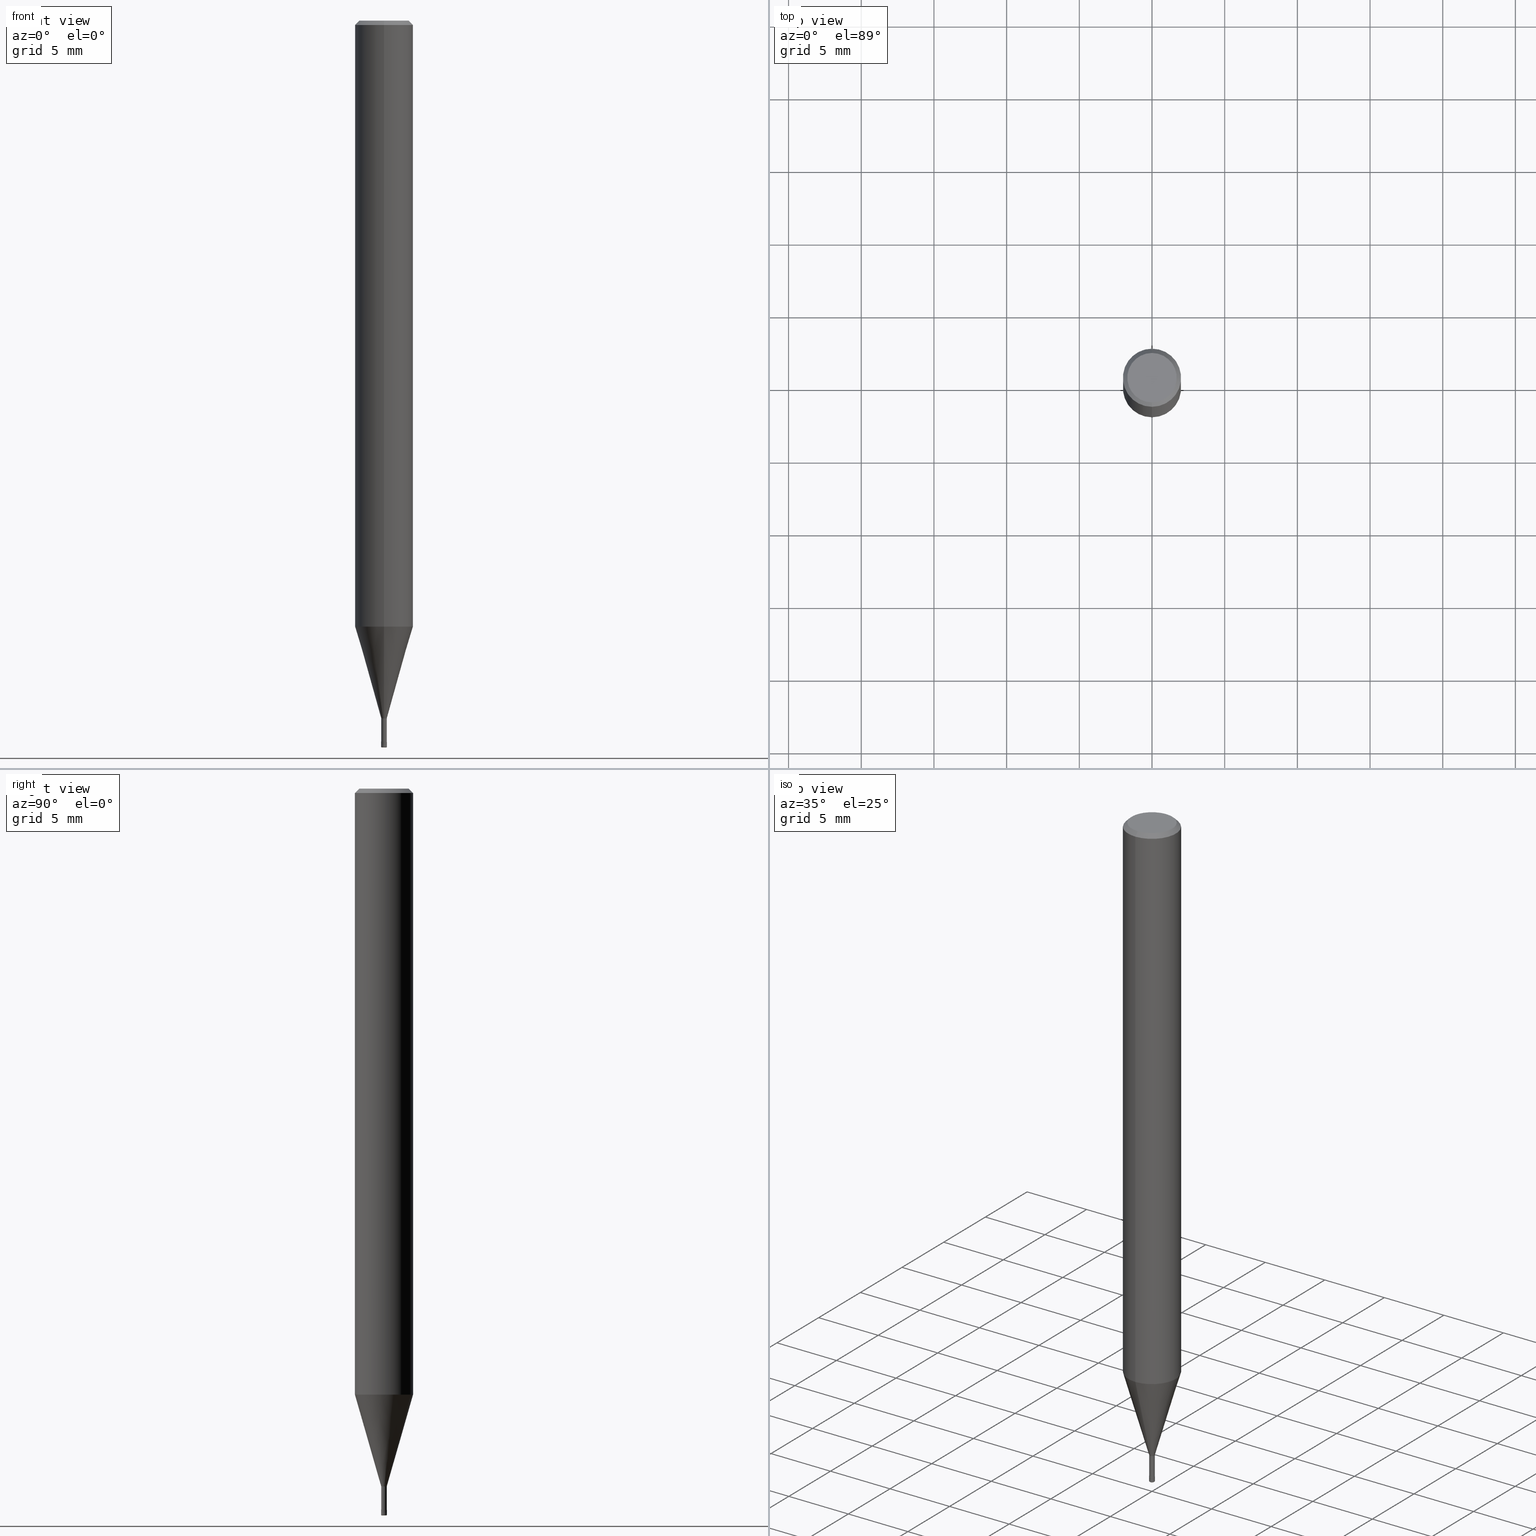
[diagram: canonical four-view strip — front | top / right | iso, engineering-drawing reading convention]
A machine part, canonical four-view strip (front | top / right | iso — engineering-drawing reading convention). The complete STEP part file that produces these views, byte-faithful:
ISO-10303-21;
HEADER;
FILE_DESCRIPTION(('no description'),'unknown implementation level');
FILE_NAME('HLRS2004-005-020E-Huellk.stp','  ',('CIMSOURCE GmbH'),('CADClick - KiM GmbH - www.kimweb.de'),'unknown preprocess','ACIS','unknown authorization');
FILE_SCHEMA(('automotive_design'));
ENDSEC;
DATA;
#1=MECHANICAL_DESIGN_GEOMETRIC_PRESENTATION_REPRESENTATION(' ',(#14,#15,#16,#17,#18,#19,#20,#21,#22,#23,#24,#25,#26,#27,#28,#29,#30,#31,#32,#33,#34,#35,#36,#37,#38,#39,#40,#41,#42,#43,#44,#45,#46,#47,#48,#49,#50,#51,#52,#53,#54,#55,#56,#57,#58,#59,#60,#61,#62,#63,#64,#65,#66,#67,#68,#69,#70,#71,#72,#73,#74,#75,#76,#77,#78,#79,#80),#10);
#2=PRODUCT_DEFINITION_CONTEXT('',#81,'design');
#3=APPLICATION_PROTOCOL_DEFINITION('INTERNATIONAL STANDARD','automotive_design',1994,#81);
#4=PRODUCT_CATEGORY_RELATIONSHIP('NONE','NONE',#82,#83);
#5=SHAPE_DEFINITION_REPRESENTATION(#84,#85);
#6=PRODUCT_DEFINITION_CONTEXT('',#86,'design');
#7=APPLICATION_PROTOCOL_DEFINITION('INTERNATIONAL STANDARD','automotive_design',1994,#86);
#8=PRODUCT_CATEGORY_RELATIONSHIP('NONE','NONE',#87,#88);
#9=SHAPE_DEFINITION_REPRESENTATION(#89,#90);
#10= (GEOMETRIC_REPRESENTATION_CONTEXT(3)GLOBAL_UNCERTAINTY_ASSIGNED_CONTEXT((#93))GLOBAL_UNIT_ASSIGNED_CONTEXT((#95,#96,#97))REPRESENTATION_CONTEXT('NONE','WORKSPACE'));
#14=STYLED_ITEM('',(#99),#100);
#15=STYLED_ITEM('',(#101),#102);
#16=STYLED_ITEM('',(#103),#104);
#17=STYLED_ITEM('',(#105),#106);
#18=STYLED_ITEM('',(#107),#108);
#19=STYLED_ITEM('',(#109),#110);
#20=STYLED_ITEM('',(#111),#112);
#21=STYLED_ITEM('',(#113),#114);
#22=STYLED_ITEM('',(#115),#116);
#23=STYLED_ITEM('',(#117),#118);
#24=STYLED_ITEM('',(#119),#120);
#25=STYLED_ITEM('',(#121),#122);
#26=STYLED_ITEM('',(#123),#124);
#27=STYLED_ITEM('',(#125),#126);
#28=STYLED_ITEM('',(#127),#128);
#29=STYLED_ITEM('',(#129),#130);
#30=STYLED_ITEM('',(#131),#132);
#31=STYLED_ITEM('',(#133),#134);
#32=STYLED_ITEM('',(#135),#136);
#33=STYLED_ITEM('',(#137),#138);
#34=STYLED_ITEM('',(#139),#140);
#35=STYLED_ITEM('',(#141),#142);
#36=STYLED_ITEM('',(#143),#144);
#37=STYLED_ITEM('',(#145),#146);
#38=STYLED_ITEM('',(#147),#148);
#39=STYLED_ITEM('',(#149),#150);
#40=STYLED_ITEM('',(#151),#152);
#41=STYLED_ITEM('',(#153),#154);
#42=STYLED_ITEM('',(#155),#156);
#43=STYLED_ITEM('',(#157),#158);
#44=STYLED_ITEM('',(#159),#160);
#45=STYLED_ITEM('',(#161),#162);
#46=STYLED_ITEM('',(#163),#164);
#47=STYLED_ITEM('',(#165),#166);
#48=STYLED_ITEM('',(#167),#168);
#49=STYLED_ITEM('',(#169),#170);
#50=STYLED_ITEM('',(#171),#172);
#51=STYLED_ITEM('',(#173),#174);
#52=STYLED_ITEM('',(#175),#176);
#53=STYLED_ITEM('',(#177),#178);
#54=STYLED_ITEM('',(#179),#180);
#55=STYLED_ITEM('',(#181),#182);
#56=STYLED_ITEM('',(#183),#184);
#57=STYLED_ITEM('',(#185),#186);
#58=STYLED_ITEM('',(#187),#188);
#59=STYLED_ITEM('',(#189),#190);
#60=STYLED_ITEM('',(#191),#192);
#61=STYLED_ITEM('',(#193),#194);
#62=STYLED_ITEM('',(#195),#196);
#63=STYLED_ITEM('',(#197),#198);
#64=STYLED_ITEM('',(#199),#200);
#65=STYLED_ITEM('',(#201),#202);
#66=STYLED_ITEM('',(#203),#204);
#67=STYLED_ITEM('',(#205),#206);
#68=STYLED_ITEM('',(#207),#208);
#69=STYLED_ITEM('',(#209),#210);
#70=STYLED_ITEM('',(#211),#212);
#71=STYLED_ITEM('',(#213),#214);
#72=STYLED_ITEM('',(#215),#216);
#73=STYLED_ITEM('',(#217),#218);
#74=STYLED_ITEM('',(#219),#220);
#75=STYLED_ITEM('',(#221),#222);
#76=STYLED_ITEM('',(#223),#224);
#77=STYLED_ITEM('',(#225),#226);
#78=STYLED_ITEM('',(#227),#228);
#79=STYLED_ITEM('',(#229),#230);
#80=STYLED_ITEM('',(#231),#232);
#81=APPLICATION_CONTEXT(' ');
#82=PRODUCT_CATEGORY('part','NONE');
#83=PRODUCT_RELATED_PRODUCT_CATEGORY('detail',' ',(#233));
#84=PRODUCT_DEFINITION_SHAPE('NONE','NONE',#234);
#85=ADVANCED_BREP_SHAPE_REPRESENTATION('1',(#226,#235),#10);
#86=APPLICATION_CONTEXT(' ');
#87=PRODUCT_CATEGORY('part','NONE');
#88=PRODUCT_RELATED_PRODUCT_CATEGORY('detail',' ',(#236));
#89=PRODUCT_DEFINITION_SHAPE('NONE','NONE',#237);
#90=ADVANCED_BREP_SHAPE_REPRESENTATION('2',(#146,#238),#10);
#93=UNCERTAINTY_MEASURE_WITH_UNIT(LENGTH_MEASURE(1.0E-006),#95,'','');
#95= (CONVERSION_BASED_UNIT('MILLIMETRE',#241)LENGTH_UNIT()NAMED_UNIT(#244));
#96= (NAMED_UNIT(#246)PLANE_ANGLE_UNIT()SI_UNIT($,.RADIAN.));
#97= (NAMED_UNIT(#246)SOLID_ANGLE_UNIT()SI_UNIT($,.STERADIAN.));
#99=PRESENTATION_STYLE_ASSIGNMENT((#252));
#100=EDGE_CURVE('',#186,#228,#253,.T.);
#101=PRESENTATION_STYLE_ASSIGNMENT((#254));
#102=EDGE_CURVE('',#164,#152,#255,.T.);
#103=PRESENTATION_STYLE_ASSIGNMENT((#256));
#104=EDGE_CURVE('',#178,#158,#257,.T.);
#105=PRESENTATION_STYLE_ASSIGNMENT((#258));
#106=ADVANCED_FACE('',(#259,#260),#261,.T.);
#107=PRESENTATION_STYLE_ASSIGNMENT((#262));
#108=EDGE_CURVE('',#164,#156,#263,.T.);
#109=PRESENTATION_STYLE_ASSIGNMENT((#264));
#110=EDGE_CURVE('',#192,#222,#265,.T.);
#111=PRESENTATION_STYLE_ASSIGNMENT((#266));
#112=VERTEX_POINT('',#267);
#113=PRESENTATION_STYLE_ASSIGNMENT((#268));
#114=EDGE_CURVE('',#192,#148,#269,.T.);
#115=PRESENTATION_STYLE_ASSIGNMENT((#270));
#116=ADVANCED_FACE('',(#271),#272,.T.);
#117=PRESENTATION_STYLE_ASSIGNMENT((#273));
#118=EDGE_CURVE('',#230,#112,#274,.T.);
#119=PRESENTATION_STYLE_ASSIGNMENT((#275));
#120=ADVANCED_FACE('',(#276),#277,.T.);
#121=PRESENTATION_STYLE_ASSIGNMENT((#278));
#122=EDGE_CURVE('',#150,#156,#279,.T.);
#123=PRESENTATION_STYLE_ASSIGNMENT((#280));
#124=EDGE_CURVE('',#126,#152,#281,.T.);
#125=PRESENTATION_STYLE_ASSIGNMENT((#282));
#126=VERTEX_POINT('',#283);
#127=PRESENTATION_STYLE_ASSIGNMENT((#284));
#128=EDGE_CURVE('',#222,#192,#285,.T.);
#129=PRESENTATION_STYLE_ASSIGNMENT((#286));
#130=EDGE_CURVE('',#148,#158,#287,.T.);
#131=PRESENTATION_STYLE_ASSIGNMENT((#288));
#132=EDGE_CURVE('',#186,#112,#289,.T.);
#133=PRESENTATION_STYLE_ASSIGNMENT((#290));
#134=VERTEX_POINT('',#291);
#135=PRESENTATION_STYLE_ASSIGNMENT((#292));
#136=EDGE_CURVE('',#158,#148,#293,.T.);
#137=PRESENTATION_STYLE_ASSIGNMENT((#294));
#138=ADVANCED_FACE('',(#295),#296,.T.);
#139=PRESENTATION_STYLE_ASSIGNMENT((#297));
#140=EDGE_CURVE('',#112,#230,#298,.T.);
#141=PRESENTATION_STYLE_ASSIGNMENT((#299));
#142=ADVANCED_FACE('',(#300),#301,.T.);
#143=PRESENTATION_STYLE_ASSIGNMENT((#302));
#144=EDGE_CURVE('',#202,#184,#303,.T.);
#145=PRESENTATION_STYLE_ASSIGNMENT((#304));
#146=MANIFOLD_SOLID_BREP('2',#305);
#147=PRESENTATION_STYLE_ASSIGNMENT((#306));
#148=VERTEX_POINT('',#307);
#149=PRESENTATION_STYLE_ASSIGNMENT((#308));
#150=VERTEX_POINT('',#309);
#151=PRESENTATION_STYLE_ASSIGNMENT((#310));
#152=VERTEX_POINT('',#311);
#153=PRESENTATION_STYLE_ASSIGNMENT((#312));
#154=EDGE_CURVE('',#150,#152,#313,.T.);
#155=PRESENTATION_STYLE_ASSIGNMENT((#314));
#156=VERTEX_POINT('',#315);
#157=PRESENTATION_STYLE_ASSIGNMENT((#316));
#158=VERTEX_POINT('',#317);
#159=PRESENTATION_STYLE_ASSIGNMENT((#318));
#160=EDGE_CURVE('',#150,#196,#319,.T.);
#161=PRESENTATION_STYLE_ASSIGNMENT((#320));
#162=EDGE_CURVE('',#196,#126,#321,.T.);
#163=PRESENTATION_STYLE_ASSIGNMENT((#322));
#164=VERTEX_POINT('',#323);
#165=PRESENTATION_STYLE_ASSIGNMENT((#324));
#166=EDGE_CURVE('',#178,#134,#325,.T.);
#167=PRESENTATION_STYLE_ASSIGNMENT((#326));
#168=EDGE_CURVE('',#184,#202,#327,.T.);
#169=PRESENTATION_STYLE_ASSIGNMENT((#328));
#170=ADVANCED_FACE('',(#329),#330,.T.);
#171=PRESENTATION_STYLE_ASSIGNMENT((#331));
#172=EDGE_CURVE('',#134,#178,#332,.T.);
#173=PRESENTATION_STYLE_ASSIGNMENT((#333));
#174=ADVANCED_FACE('',(#334),#335,.T.);
#175=PRESENTATION_STYLE_ASSIGNMENT((#336));
#176=ADVANCED_FACE('',(#337),#338,.T.);
#177=PRESENTATION_STYLE_ASSIGNMENT((#339));
#178=VERTEX_POINT('',#340);
#179=PRESENTATION_STYLE_ASSIGNMENT((#341));
#180=EDGE_CURVE('',#202,#186,#342,.T.);
#181=PRESENTATION_STYLE_ASSIGNMENT((#343));
#182=EDGE_CURVE('',#148,#134,#344,.T.);
#183=PRESENTATION_STYLE_ASSIGNMENT((#345));
#184=VERTEX_POINT('',#346);
#185=PRESENTATION_STYLE_ASSIGNMENT((#347));
#186=VERTEX_POINT('',#348);
#187=PRESENTATION_STYLE_ASSIGNMENT((#349));
#188=ADVANCED_FACE('',(#350),#351,.T.);
#189=PRESENTATION_STYLE_ASSIGNMENT((#352));
#190=EDGE_CURVE('',#228,#186,#353,.T.);
#191=PRESENTATION_STYLE_ASSIGNMENT((#354));
#192=VERTEX_POINT('',#355);
#193=PRESENTATION_STYLE_ASSIGNMENT((#356));
#194=ADVANCED_FACE('',(#357),#358,.T.);
#195=PRESENTATION_STYLE_ASSIGNMENT((#359));
#196=VERTEX_POINT('',#360);
#197=PRESENTATION_STYLE_ASSIGNMENT((#361));
#198=ADVANCED_FACE('',(#362),#363,.T.);
#199=PRESENTATION_STYLE_ASSIGNMENT((#364));
#200=EDGE_CURVE('',#156,#164,#365,.T.);
#201=PRESENTATION_STYLE_ASSIGNMENT((#366));
#202=VERTEX_POINT('',#367);
#203=PRESENTATION_STYLE_ASSIGNMENT((#368));
#204=EDGE_CURVE('',#230,#228,#369,.T.);
#205=PRESENTATION_STYLE_ASSIGNMENT((#370));
#206=EDGE_CURVE('',#152,#150,#371,.T.);
#207=PRESENTATION_STYLE_ASSIGNMENT((#372));
#208=ADVANCED_FACE('',(#373),#374,.T.);
#209=PRESENTATION_STYLE_ASSIGNMENT((#375));
#210=ADVANCED_FACE('',(#376),#377,.T.);
#211=PRESENTATION_STYLE_ASSIGNMENT((#378));
#212=ADVANCED_FACE('',(#379),#380,.T.);
#213=PRESENTATION_STYLE_ASSIGNMENT((#381));
#214=ADVANCED_FACE('',(#382),#383,.T.);
#215=PRESENTATION_STYLE_ASSIGNMENT((#384));
#216=ADVANCED_FACE('',(#385),#386,.T.);
#217=PRESENTATION_STYLE_ASSIGNMENT((#387));
#218=EDGE_CURVE('',#228,#184,#388,.T.);
#219=PRESENTATION_STYLE_ASSIGNMENT((#389));
#220=EDGE_CURVE('',#126,#196,#390,.T.);
#221=PRESENTATION_STYLE_ASSIGNMENT((#391));
#222=VERTEX_POINT('',#392);
#223=PRESENTATION_STYLE_ASSIGNMENT((#393));
#224=EDGE_CURVE('',#158,#222,#394,.T.);
#225=PRESENTATION_STYLE_ASSIGNMENT((#395));
#226=MANIFOLD_SOLID_BREP('1',#396);
#227=PRESENTATION_STYLE_ASSIGNMENT((#397));
#228=VERTEX_POINT('',#398);
#229=PRESENTATION_STYLE_ASSIGNMENT((#399));
#230=VERTEX_POINT('',#400);
#231=PRESENTATION_STYLE_ASSIGNMENT((#401));
#232=ADVANCED_FACE('',(#402),#403,.T.);
#233=PRODUCT('1','1','PART-1-DESC',(#404));
#234=PRODUCT_DEFINITION('NONE','NONE',#405,#2);
#235=AXIS2_PLACEMENT_3D('',#406,#407,#408);
#236=PRODUCT('2','2','PART-2-DESC',(#409));
#237=PRODUCT_DEFINITION('NONE','NONE',#410,#6);
#238=AXIS2_PLACEMENT_3D('',#411,#412,#413);
#241=LENGTH_MEASURE_WITH_UNIT(LENGTH_MEASURE(1.0),#414);
#244=DIMENSIONAL_EXPONENTS(1.0,0.0,0.0,0.0,0.0,0.0,0.0);
#246=DIMENSIONAL_EXPONENTS(0.0,0.0,0.0,0.0,0.0,0.0,0.0);
#252=CURVE_STYLE('',#415,POSITIVE_LENGTH_MEASURE(1.0E-006),#416);
#253=CIRCLE('',#417,2.0);
#254=CURVE_STYLE('',#418,POSITIVE_LENGTH_MEASURE(1.0E-006),#419);
#255=CIRCLE('',#420,0.0499999999999998);
#256=CURVE_STYLE('',#421,POSITIVE_LENGTH_MEASURE(1.0E-006),#422);
#257=LINE('',#423,#424);
#258=SURFACE_STYLE_USAGE(.BOTH.,#425);
#259=FACE_OUTER_BOUND('',#426,.T.);
#260=FACE_BOUND('',#427,.T.);
#261=PLANE('',#428);
#262=CURVE_STYLE('',#429,POSITIVE_LENGTH_MEASURE(1.0E-006),#430);
#263=CIRCLE('',#431,0.15);
#264=CURVE_STYLE('',#432,POSITIVE_LENGTH_MEASURE(1.0E-006),#433);
#265=CIRCLE('',#434,1.99995);
#266=POINT_STYLE(' ',#435,POSITIVE_LENGTH_MEASURE(1.0E-006),#436);
#267=CARTESIAN_POINT('',(2.08183080149804E-016,-1.7,0.0));
#268=CURVE_STYLE('',#437,POSITIVE_LENGTH_MEASURE(1.0E-006),#438);
#269=LINE('',#439,#440);
#270=SURFACE_STYLE_USAGE(.BOTH.,#441);
#271=FACE_OUTER_BOUND('',#442,.T.);
#272=PLANE('',#443);
#273=CURVE_STYLE('',#444,POSITIVE_LENGTH_MEASURE(1.0E-006),#445);
#274=CIRCLE('',#446,1.7);
#275=SURFACE_STYLE_USAGE(.BOTH.,#447);
#276=FACE_OUTER_BOUND('',#448,.T.);
#277=CONICAL_SURFACE('',#449,0.19995,0.000285714277939796);
#278=CURVE_STYLE('',#450,POSITIVE_LENGTH_MEASURE(1.0E-006),#451);
#279=CIRCLE('',#452,0.0499999999999998);
#280=CURVE_STYLE('',#453,POSITIVE_LENGTH_MEASURE(1.0E-006),#454);
#281=LINE('',#455,#456);
#282=POINT_STYLE(' ',#457,POSITIVE_LENGTH_MEASURE(1.0E-006),#458);
#283=CARTESIAN_POINT('',(0.0,0.1999,-49.6));
#284=CURVE_STYLE('',#459,POSITIVE_LENGTH_MEASURE(1.0E-006),#460);
#285=CIRCLE('',#461,1.99995);
#286=CURVE_STYLE('',#462,POSITIVE_LENGTH_MEASURE(1.0E-006),#463);
#287=CIRCLE('',#464,0.18995);
#288=CURVE_STYLE('',#465,POSITIVE_LENGTH_MEASURE(1.0E-006),#466);
#289=LINE('',#467,#468);
#290=POINT_STYLE(' ',#469,POSITIVE_LENGTH_MEASURE(1.0E-006),#470);
#291=CARTESIAN_POINT('',(0.0,0.18995,-49.6));
#292=CURVE_STYLE('',#471,POSITIVE_LENGTH_MEASURE(1.0E-006),#472);
#293=CIRCLE('',#473,0.18995);
#294=SURFACE_STYLE_USAGE(.BOTH.,#474);
#295=FACE_OUTER_BOUND('',#475,.T.);
#296=CONICAL_SURFACE('',#476,1.85,0.785398163397453);
#297=CURVE_STYLE('',#477,POSITIVE_LENGTH_MEASURE(1.0E-006),#478);
#298=CIRCLE('',#479,1.7);
#299=SURFACE_STYLE_USAGE(.BOTH.,#480);
#300=FACE_OUTER_BOUND('',#481,.T.);
#301=CYLINDRICAL_SURFACE('',#482,2.0);
#302=CURVE_STYLE('',#483,POSITIVE_LENGTH_MEASURE(1.0E-006),#484);
#303=CIRCLE('',#485,2.0);
#304=SURFACE_STYLE_USAGE(.BOTH.,#486);
#305=CLOSED_SHELL('',(#198,#120,#216,#174,#194,#212));
#306=POINT_STYLE(' ',#487,POSITIVE_LENGTH_MEASURE(1.0E-006),#488);
#307=CARTESIAN_POINT('',(0.0,0.18995,-48.0));
#308=POINT_STYLE(' ',#489,POSITIVE_LENGTH_MEASURE(1.0E-006),#490);
#309=CARTESIAN_POINT('',(2.44921270764475E-017,-0.2,-49.95));
#310=POINT_STYLE(' ',#491,POSITIVE_LENGTH_MEASURE(1.0E-006),#492);
#311=CARTESIAN_POINT('',(0.0,0.2,-49.95));
#312=CURVE_STYLE('',#493,POSITIVE_LENGTH_MEASURE(1.0E-006),#494);
#313=CIRCLE('',#495,0.2);
#314=POINT_STYLE(' ',#496,POSITIVE_LENGTH_MEASURE(1.0E-006),#497);
#315=CARTESIAN_POINT('',(1.83690953073357E-017,-0.15,-50.0));
#316=POINT_STYLE(' ',#498,POSITIVE_LENGTH_MEASURE(1.0E-006),#499);
#317=CARTESIAN_POINT('',(2.3261397690856E-017,-0.18995,-48.0));
#318=CURVE_STYLE('',#500,POSITIVE_LENGTH_MEASURE(1.0E-006),#501);
#319=LINE('',#502,#503);
#320=CURVE_STYLE('',#504,POSITIVE_LENGTH_MEASURE(1.0E-006),#505);
#321=CIRCLE('',#506,0.1999);
#322=POINT_STYLE(' ',#507,POSITIVE_LENGTH_MEASURE(1.0E-006),#508);
#323=CARTESIAN_POINT('',(0.0,0.15,-50.0));
#324=CURVE_STYLE('',#509,POSITIVE_LENGTH_MEASURE(1.0E-006),#510);
#325=CIRCLE('',#511,0.18995);
#326=CURVE_STYLE('',#512,POSITIVE_LENGTH_MEASURE(1.0E-006),#513);
#327=CIRCLE('',#514,2.0);
#328=SURFACE_STYLE_USAGE(.BOTH.,#515);
#329=FACE_OUTER_BOUND('',#516,.T.);
#330=CYLINDRICAL_SURFACE('',#517,0.18995);
#331=CURVE_STYLE('',#518,POSITIVE_LENGTH_MEASURE(1.0E-006),#519);
#332=CIRCLE('',#520,0.18995);
#333=SURFACE_STYLE_USAGE(.BOTH.,#521);
#334=FACE_OUTER_BOUND('',#522,.T.);
#335=CONICAL_SURFACE('',#523,0.19995,0.000285714277939796);
#336=SURFACE_STYLE_USAGE(.BOTH.,#524);
#337=FACE_OUTER_BOUND('',#525,.T.);
#338=CONICAL_SURFACE('',#526,1.09495,0.279261921280279);
#339=POINT_STYLE(' ',#527,POSITIVE_LENGTH_MEASURE(1.0E-006),#528);
#340=CARTESIAN_POINT('',(2.32613976908561E-017,-0.18995,-49.6));
#341=CURVE_STYLE('',#529,POSITIVE_LENGTH_MEASURE(1.0E-006),#530);
#342=LINE('',#531,#532);
#343=CURVE_STYLE('',#533,POSITIVE_LENGTH_MEASURE(1.0E-006),#534);
#344=LINE('',#535,#536);
#345=POINT_STYLE(' ',#537,POSITIVE_LENGTH_MEASURE(1.0E-006),#538);
#346=CARTESIAN_POINT('',(0.0,2.0,-41.688));
#347=POINT_STYLE(' ',#539,POSITIVE_LENGTH_MEASURE(1.0E-006),#540);
#348=CARTESIAN_POINT('',(2.44921270764475E-016,-2.0,-0.299999999999997));
#349=SURFACE_STYLE_USAGE(.BOTH.,#541);
#350=FACE_OUTER_BOUND('',#542,.T.);
#351=CONICAL_SURFACE('',#543,1.09495,0.279261921280279);
#352=CURVE_STYLE('',#544,POSITIVE_LENGTH_MEASURE(1.0E-006),#545);
#353=CIRCLE('',#546,2.0);
#354=POINT_STYLE(' ',#547,POSITIVE_LENGTH_MEASURE(1.0E-006),#548);
#355=CARTESIAN_POINT('',(0.0,1.99995,-41.688));
#356=SURFACE_STYLE_USAGE(.BOTH.,#549);
#357=FACE_OUTER_BOUND('',#550,.T.);
#358=TOROIDAL_SURFACE('',#551,0.15,0.0499999999999998);
#359=POINT_STYLE(' ',#552,POSITIVE_LENGTH_MEASURE(1.0E-006),#553);
#360=CARTESIAN_POINT('',(2.44798810129093E-017,-0.1999,-49.6));
#361=SURFACE_STYLE_USAGE(.BOTH.,#554);
#362=FACE_OUTER_BOUND('',#555,.T.);
#363=TOROIDAL_SURFACE('',#556,0.15,0.0499999999999998);
#364=CURVE_STYLE('',#557,POSITIVE_LENGTH_MEASURE(1.0E-006),#558);
#365=CIRCLE('',#559,0.15);
#366=POINT_STYLE(' ',#560,POSITIVE_LENGTH_MEASURE(1.0E-006),#561);
#367=CARTESIAN_POINT('',(2.44921270764475E-016,-2.0,-41.688));
#368=CURVE_STYLE('',#562,POSITIVE_LENGTH_MEASURE(1.0E-006),#563);
#369=LINE('',#564,#565);
#370=CURVE_STYLE('',#566,POSITIVE_LENGTH_MEASURE(1.0E-006),#567);
#371=CIRCLE('',#568,0.2);
#372=SURFACE_STYLE_USAGE(.BOTH.,#569);
#373=FACE_OUTER_BOUND('',#570,.T.);
#374=PLANE('',#571);
#375=SURFACE_STYLE_USAGE(.BOTH.,#572);
#376=FACE_OUTER_BOUND('',#573,.T.);
#377=CYLINDRICAL_SURFACE('',#574,0.18995);
#378=SURFACE_STYLE_USAGE(.BOTH.,#575);
#379=FACE_OUTER_BOUND('',#576,.T.);
#380=PLANE('',#577);
#381=SURFACE_STYLE_USAGE(.BOTH.,#578);
#382=FACE_OUTER_BOUND('',#579,.T.);
#383=CYLINDRICAL_SURFACE('',#580,2.0);
#384=SURFACE_STYLE_USAGE(.BOTH.,#581);
#385=FACE_OUTER_BOUND('',#582,.T.);
#386=PLANE('',#583);
#387=CURVE_STYLE('',#584,POSITIVE_LENGTH_MEASURE(1.0E-006),#585);
#388=LINE('',#586,#587);
#389=CURVE_STYLE('',#588,POSITIVE_LENGTH_MEASURE(1.0E-006),#589);
#390=CIRCLE('',#590,0.1999);
#391=POINT_STYLE(' ',#591,POSITIVE_LENGTH_MEASURE(1.0E-006),#592);
#392=CARTESIAN_POINT('',(2.44915147732706E-016,-1.99995,-41.688));
#393=CURVE_STYLE('',#593,POSITIVE_LENGTH_MEASURE(1.0E-006),#594);
#394=LINE('',#595,#596);
#395=SURFACE_STYLE_USAGE(.BOTH.,#597);
#396=CLOSED_SHELL('',(#210,#188,#142,#232,#106,#116,#138,#214,#176,#170,#208));
#397=POINT_STYLE(' ',#598,POSITIVE_LENGTH_MEASURE(1.0E-006),#599);
#398=CARTESIAN_POINT('',(0.0,2.0,-0.299999999999997));
#399=POINT_STYLE(' ',#600,POSITIVE_LENGTH_MEASURE(1.0E-006),#601);
#400=CARTESIAN_POINT('',(0.0,1.7,0.0));
#401=SURFACE_STYLE_USAGE(.BOTH.,#602);
#402=FACE_OUTER_BOUND('',#603,.T.);
#403=CONICAL_SURFACE('',#604,1.85,0.785398163397453);
#404=PRODUCT_CONTEXT('',#81,'mechanical');
#405=PRODUCT_DEFINITION_FORMATION_WITH_SPECIFIED_SOURCE(' ','NONE',#233,.NOT_KNOWN.);
#406=CARTESIAN_POINT('',(0.0,0.0,0.0));
#407=DIRECTION('',(0.0,0.0,1.0));
#408=DIRECTION('',(1.0,0.0,0.0));
#409=PRODUCT_CONTEXT('',#86,'mechanical');
#410=PRODUCT_DEFINITION_FORMATION_WITH_SPECIFIED_SOURCE(' ','NONE',#236,.NOT_KNOWN.);
#411=CARTESIAN_POINT('',(0.0,0.0,0.0));
#412=DIRECTION('',(0.0,0.0,1.0));
#413=DIRECTION('',(1.0,0.0,0.0));
#414= (NAMED_UNIT(#244)LENGTH_UNIT()SI_UNIT(.MILLI.,.METRE.));
#415=DRAUGHTING_PRE_DEFINED_CURVE_FONT('continuous');
#416=COLOUR_RGB('',0.498039215803146,0.498039215803146,0.498039215803146);
#417=AXIS2_PLACEMENT_3D('',#606,#607,#608);
#418=DRAUGHTING_PRE_DEFINED_CURVE_FONT('continuous');
#419=COLOUR_RGB('',0.800000011920929,0.800000011920929,0.800000011920929);
#420=AXIS2_PLACEMENT_3D('',#609,#610,#611);
#421=DRAUGHTING_PRE_DEFINED_CURVE_FONT('continuous');
#422=COLOUR_RGB('',0.498039215803146,0.498039215803146,0.498039215803146);
#423=CARTESIAN_POINT('',(2.32613976908561E-017,-0.18995,-48.8));
#424=VECTOR('',#612,1.0);
#425=SURFACE_SIDE_STYLE('',(#613));
#426=EDGE_LOOP('',(#614,#615));
#427=EDGE_LOOP('',(#616,#617));
#428=AXIS2_PLACEMENT_3D('',#618,#619,#620);
#429=DRAUGHTING_PRE_DEFINED_CURVE_FONT('continuous');
#430=COLOUR_RGB('',0.800000011920929,0.800000011920929,0.800000011920929);
#431=AXIS2_PLACEMENT_3D('',#621,#622,#623);
#432=DRAUGHTING_PRE_DEFINED_CURVE_FONT('continuous');
#433=COLOUR_RGB('',0.498039215803146,0.498039215803146,0.498039215803146);
#434=AXIS2_PLACEMENT_3D('',#624,#625,#626);
#435=PRE_DEFINED_MARKER('');
#436=COLOUR_RGB('',0.498039215803146,0.498039215803146,0.498039215803146);
#437=DRAUGHTING_PRE_DEFINED_CURVE_FONT('continuous');
#438=COLOUR_RGB('',0.498039215803146,0.498039215803146,0.498039215803146);
#439=CARTESIAN_POINT('',(-1.34088272711781E-016,1.09495,-44.844));
#440=VECTOR('',#627,1.0);
#441=SURFACE_SIDE_STYLE('',(#628));
#442=EDGE_LOOP('',(#629,#630));
#443=AXIS2_PLACEMENT_3D('',#631,#632,#633);
#444=DRAUGHTING_PRE_DEFINED_CURVE_FONT('continuous');
#445=COLOUR_RGB('',0.498039215803146,0.498039215803146,0.498039215803146);
#446=AXIS2_PLACEMENT_3D('',#634,#635,#636);
#447=SURFACE_SIDE_STYLE('',(#637));
#448=EDGE_LOOP('',(#638,#639,#640,#641));
#449=AXIS2_PLACEMENT_3D('',#642,#643,#644);
#450=DRAUGHTING_PRE_DEFINED_CURVE_FONT('continuous');
#451=COLOUR_RGB('',0.800000011920929,0.800000011920929,0.800000011920929);
#452=AXIS2_PLACEMENT_3D('',#645,#646,#647);
#453=DRAUGHTING_PRE_DEFINED_CURVE_FONT('continuous');
#454=COLOUR_RGB('',0.800000011920929,0.800000011920929,0.800000011920929);
#455=CARTESIAN_POINT('',(-2.44860040446784E-017,0.19995,-49.775));
#456=VECTOR('',#648,1.0);
#457=PRE_DEFINED_MARKER('');
#458=COLOUR_RGB('',0.800000011920929,0.800000011920929,0.800000011920929);
#459=DRAUGHTING_PRE_DEFINED_CURVE_FONT('continuous');
#460=COLOUR_RGB('',0.498039215803146,0.498039215803146,0.498039215803146);
#461=AXIS2_PLACEMENT_3D('',#649,#650,#651);
#462=DRAUGHTING_PRE_DEFINED_CURVE_FONT('continuous');
#463=COLOUR_RGB('',0.498039215803146,0.498039215803146,0.498039215803146);
#464=AXIS2_PLACEMENT_3D('',#652,#653,#654);
#465=DRAUGHTING_PRE_DEFINED_CURVE_FONT('continuous');
#466=COLOUR_RGB('',0.498039215803146,0.498039215803146,0.498039215803146);
#467=CARTESIAN_POINT('',(2.2655217545714E-016,-1.85,-0.149999999999999));
#468=VECTOR('',#655,1.0);
#469=PRE_DEFINED_MARKER('');
#470=COLOUR_RGB('',0.498039215803146,0.498039215803146,0.498039215803146);
#471=DRAUGHTING_PRE_DEFINED_CURVE_FONT('continuous');
#472=COLOUR_RGB('',0.498039215803146,0.498039215803146,0.498039215803146);
#473=AXIS2_PLACEMENT_3D('',#656,#657,#658);
#474=SURFACE_SIDE_STYLE('',(#659));
#475=EDGE_LOOP('',(#660,#661,#662,#663));
#476=AXIS2_PLACEMENT_3D('',#664,#665,#666);
#477=DRAUGHTING_PRE_DEFINED_CURVE_FONT('continuous');
#478=COLOUR_RGB('',0.498039215803146,0.498039215803146,0.498039215803146);
#479=AXIS2_PLACEMENT_3D('',#667,#668,#669);
#480=SURFACE_SIDE_STYLE('',(#670));
#481=EDGE_LOOP('',(#671,#672,#673,#674));
#482=AXIS2_PLACEMENT_3D('',#675,#676,#677);
#483=DRAUGHTING_PRE_DEFINED_CURVE_FONT('continuous');
#484=COLOUR_RGB('',0.498039215803146,0.498039215803146,0.498039215803146);
#485=AXIS2_PLACEMENT_3D('',#678,#679,#680);
#486=SURFACE_SIDE_STYLE('',(#681));
#487=PRE_DEFINED_MARKER('');
#488=COLOUR_RGB('',0.498039215803146,0.498039215803146,0.498039215803146);
#489=PRE_DEFINED_MARKER('');
#490=COLOUR_RGB('',0.800000011920929,0.800000011920929,0.800000011920929);
#491=PRE_DEFINED_MARKER('');
#492=COLOUR_RGB('',0.800000011920929,0.800000011920929,0.800000011920929);
#493=DRAUGHTING_PRE_DEFINED_CURVE_FONT('continuous');
#494=COLOUR_RGB('',0.800000011920929,0.800000011920929,0.800000011920929);
#495=AXIS2_PLACEMENT_3D('',#682,#683,#684);
#496=PRE_DEFINED_MARKER('');
#497=COLOUR_RGB('',0.800000011920929,0.800000011920929,0.800000011920929);
#498=PRE_DEFINED_MARKER('');
#499=COLOUR_RGB('',0.498039215803146,0.498039215803146,0.498039215803146);
#500=DRAUGHTING_PRE_DEFINED_CURVE_FONT('continuous');
#501=COLOUR_RGB('',0.800000011920929,0.800000011920929,0.800000011920929);
#502=CARTESIAN_POINT('',(2.44860040446784E-017,-0.19995,-49.775));
#503=VECTOR('',#685,1.0);
#504=DRAUGHTING_PRE_DEFINED_CURVE_FONT('continuous');
#505=COLOUR_RGB('',0.800000011920929,0.800000011920929,0.800000011920929);
#506=AXIS2_PLACEMENT_3D('',#686,#687,#688);
#507=PRE_DEFINED_MARKER('');
#508=COLOUR_RGB('',0.800000011920929,0.800000011920929,0.800000011920929);
#509=DRAUGHTING_PRE_DEFINED_CURVE_FONT('continuous');
#510=COLOUR_RGB('',0.498039215803146,0.498039215803146,0.498039215803146);
#511=AXIS2_PLACEMENT_3D('',#689,#690,#691);
#512=DRAUGHTING_PRE_DEFINED_CURVE_FONT('continuous');
#513=COLOUR_RGB('',0.498039215803146,0.498039215803146,0.498039215803146);
#514=AXIS2_PLACEMENT_3D('',#692,#693,#694);
#515=SURFACE_SIDE_STYLE('',(#695));
#516=EDGE_LOOP('',(#696,#697,#698,#699));
#517=AXIS2_PLACEMENT_3D('',#700,#701,#702);
#518=DRAUGHTING_PRE_DEFINED_CURVE_FONT('continuous');
#519=COLOUR_RGB('',0.498039215803146,0.498039215803146,0.498039215803146);
#520=AXIS2_PLACEMENT_3D('',#703,#704,#705);
#521=SURFACE_SIDE_STYLE('',(#706));
#522=EDGE_LOOP('',(#707,#708,#709,#710));
#523=AXIS2_PLACEMENT_3D('',#711,#712,#713);
#524=SURFACE_SIDE_STYLE('',(#714));
#525=EDGE_LOOP('',(#715,#716,#717,#718));
#526=AXIS2_PLACEMENT_3D('',#719,#720,#721);
#527=PRE_DEFINED_MARKER('');
#528=COLOUR_RGB('',0.498039215803146,0.498039215803146,0.498039215803146);
#529=DRAUGHTING_PRE_DEFINED_CURVE_FONT('continuous');
#530=COLOUR_RGB('',0.498039215803146,0.498039215803146,0.498039215803146);
#531=CARTESIAN_POINT('',(2.44921270764475E-016,-2.0,-20.994));
#532=VECTOR('',#722,1.0);
#533=DRAUGHTING_PRE_DEFINED_CURVE_FONT('continuous');
#534=COLOUR_RGB('',0.498039215803146,0.498039215803146,0.498039215803146);
#535=CARTESIAN_POINT('',(-2.32613976908561E-017,0.18995,-48.8));
#536=VECTOR('',#723,1.0);
#537=PRE_DEFINED_MARKER('');
#538=COLOUR_RGB('',0.498039215803146,0.498039215803146,0.498039215803146);
#539=PRE_DEFINED_MARKER('');
#540=COLOUR_RGB('',0.498039215803146,0.498039215803146,0.498039215803146);
#541=SURFACE_SIDE_STYLE('',(#724));
#542=EDGE_LOOP('',(#725,#726,#727,#728));
#543=AXIS2_PLACEMENT_3D('',#729,#730,#731);
#544=DRAUGHTING_PRE_DEFINED_CURVE_FONT('continuous');
#545=COLOUR_RGB('',0.498039215803146,0.498039215803146,0.498039215803146);
#546=AXIS2_PLACEMENT_3D('',#732,#733,#734);
#547=PRE_DEFINED_MARKER('');
#548=COLOUR_RGB('',0.498039215803146,0.498039215803146,0.498039215803146);
#549=SURFACE_SIDE_STYLE('',(#735));
#550=EDGE_LOOP('',(#736,#737,#738,#739));
#551=AXIS2_PLACEMENT_3D('',#740,#741,#742);
#552=PRE_DEFINED_MARKER('');
#553=COLOUR_RGB('',0.800000011920929,0.800000011920929,0.800000011920929);
#554=SURFACE_SIDE_STYLE('',(#743));
#555=EDGE_LOOP('',(#744,#745,#746,#747));
#556=AXIS2_PLACEMENT_3D('',#748,#749,#750);
#557=DRAUGHTING_PRE_DEFINED_CURVE_FONT('continuous');
#558=COLOUR_RGB('',0.800000011920929,0.800000011920929,0.800000011920929);
#559=AXIS2_PLACEMENT_3D('',#751,#752,#753);
#560=PRE_DEFINED_MARKER('');
#561=COLOUR_RGB('',0.498039215803146,0.498039215803146,0.498039215803146);
#562=DRAUGHTING_PRE_DEFINED_CURVE_FONT('continuous');
#563=COLOUR_RGB('',0.498039215803146,0.498039215803146,0.498039215803146);
#564=CARTESIAN_POINT('',(-2.2655217545714E-016,1.85,-0.149999999999999));
#565=VECTOR('',#754,1.0);
#566=DRAUGHTING_PRE_DEFINED_CURVE_FONT('continuous');
#567=COLOUR_RGB('',0.800000011920929,0.800000011920929,0.800000011920929);
#568=AXIS2_PLACEMENT_3D('',#755,#756,#757);
#569=SURFACE_SIDE_STYLE('',(#758));
#570=EDGE_LOOP('',(#759,#760));
#571=AXIS2_PLACEMENT_3D('',#761,#762,#763);
#572=SURFACE_SIDE_STYLE('',(#764));
#573=EDGE_LOOP('',(#765,#766,#767,#768));
#574=AXIS2_PLACEMENT_3D('',#769,#770,#771);
#575=SURFACE_SIDE_STYLE('',(#772));
#576=EDGE_LOOP('',(#773,#774));
#577=AXIS2_PLACEMENT_3D('',#775,#776,#777);
#578=SURFACE_SIDE_STYLE('',(#778));
#579=EDGE_LOOP('',(#779,#780,#781,#782));
#580=AXIS2_PLACEMENT_3D('',#783,#784,#785);
#581=SURFACE_SIDE_STYLE('',(#786));
#582=EDGE_LOOP('',(#787,#788));
#583=AXIS2_PLACEMENT_3D('',#789,#790,#791);
#584=DRAUGHTING_PRE_DEFINED_CURVE_FONT('continuous');
#585=COLOUR_RGB('',0.498039215803146,0.498039215803146,0.498039215803146);
#586=CARTESIAN_POINT('',(-2.44921270764475E-016,2.0,-20.994));
#587=VECTOR('',#792,1.0);
#588=DRAUGHTING_PRE_DEFINED_CURVE_FONT('continuous');
#589=COLOUR_RGB('',0.800000011920929,0.800000011920929,0.800000011920929);
#590=AXIS2_PLACEMENT_3D('',#793,#794,#795);
#591=PRE_DEFINED_MARKER('');
#592=COLOUR_RGB('',0.498039215803146,0.498039215803146,0.498039215803146);
#593=DRAUGHTING_PRE_DEFINED_CURVE_FONT('continuous');
#594=COLOUR_RGB('',0.498039215803146,0.498039215803146,0.498039215803146);
#595=CARTESIAN_POINT('',(1.34088272711781E-016,-1.09495,-44.844));
#596=VECTOR('',#796,1.0);
#597=SURFACE_SIDE_STYLE('',(#797));
#598=PRE_DEFINED_MARKER('');
#599=COLOUR_RGB('',0.498039215803146,0.498039215803146,0.498039215803146);
#600=PRE_DEFINED_MARKER('');
#601=COLOUR_RGB('',0.498039215803146,0.498039215803146,0.498039215803146);
#602=SURFACE_SIDE_STYLE('',(#798));
#603=EDGE_LOOP('',(#799,#800,#801,#802));
#604=AXIS2_PLACEMENT_3D('',#803,#804,#805);
#606=CARTESIAN_POINT('',(0.0,0.0,-0.299999999999997));
#607=DIRECTION('',(0.0,0.0,-1.0));
#608=DIRECTION('',(0.0,1.0,0.0));
#609=CARTESIAN_POINT('',(-1.83690953073357E-017,0.15,-49.95));
#610=DIRECTION('',(1.0,1.22460635382238E-016,0.0));
#611=DIRECTION('',(-1.22460635382238E-016,1.0,0.0));
#612=DIRECTION('',(-0.0,-0.0,1.0));
#613=SURFACE_STYLE_FILL_AREA(#806);
#614=ORIENTED_EDGE('',*,*,#168,.T.);
#615=ORIENTED_EDGE('',*,*,#144,.T.);
#616=ORIENTED_EDGE('',*,*,#110,.F.);
#617=ORIENTED_EDGE('',*,*,#128,.F.);
#618=CARTESIAN_POINT('',(0.0,1.0,-41.688));
#619=DIRECTION('',(0.0,0.0,-1.0));
#620=DIRECTION('',(0.0,1.0,0.0));
#621=CARTESIAN_POINT('',(0.0,0.0,-50.0));
#622=DIRECTION('',(0.0,0.0,-1.0));
#623=DIRECTION('',(0.0,1.0,0.0));
#624=CARTESIAN_POINT('',(0.0,0.0,-41.688));
#625=DIRECTION('',(0.0,0.0,-1.0));
#626=DIRECTION('',(0.0,1.0,0.0));
#627=DIRECTION('',(3.37558135426109E-017,-0.275646238787252,-0.961259148743169));
#628=SURFACE_STYLE_FILL_AREA(#807);
#629=ORIENTED_EDGE('',*,*,#118,.F.);
#630=ORIENTED_EDGE('',*,*,#140,.F.);
#631=CARTESIAN_POINT('',(0.0,0.85,0.0));
#632=DIRECTION('',(-0.0,0.0,1.0));
#633=DIRECTION('',(0.0,-1.0,0.0));
#634=CARTESIAN_POINT('',(0.0,0.0,0.0));
#635=DIRECTION('',(0.0,0.0,-1.0));
#636=DIRECTION('',(0.0,1.0,0.0));
#637=SURFACE_STYLE_FILL_AREA(#808);
#638=ORIENTED_EDGE('',*,*,#124,.F.);
#639=ORIENTED_EDGE('',*,*,#220,.T.);
#640=ORIENTED_EDGE('',*,*,#160,.F.);
#641=ORIENTED_EDGE('',*,*,#206,.F.);
#642=CARTESIAN_POINT('',(0.0,0.0,-49.775));
#643=DIRECTION('',(0.0,-0.0,-1.0));
#644=DIRECTION('',(0.0,1.0,0.0));
#645=CARTESIAN_POINT('',(1.83690953073357E-017,-0.15,-49.95));
#646=DIRECTION('',(1.0,1.22460635382238E-016,0.0));
#647=DIRECTION('',(1.22460635382238E-016,-1.0,-0.0));
#648=DIRECTION('',(-3.49887515382472E-020,0.000285714274052527,-0.999999959183676));
#649=CARTESIAN_POINT('',(0.0,0.0,-41.688));
#650=DIRECTION('',(0.0,0.0,-1.0));
#651=DIRECTION('',(0.0,1.0,0.0));
#652=CARTESIAN_POINT('',(0.0,0.0,-48.0));
#653=DIRECTION('',(0.0,0.0,-1.0));
#654=DIRECTION('',(0.0,1.0,0.0));
#655=DIRECTION('',(-8.6592745707194E-017,0.707106781186551,0.707106781186544));
#656=CARTESIAN_POINT('',(0.0,0.0,-48.0));
#657=DIRECTION('',(0.0,0.0,-1.0));
#658=DIRECTION('',(0.0,1.0,0.0));
#659=SURFACE_STYLE_FILL_AREA(#809);
#660=ORIENTED_EDGE('',*,*,#204,.T.);
#661=ORIENTED_EDGE('',*,*,#100,.F.);
#662=ORIENTED_EDGE('',*,*,#132,.T.);
#663=ORIENTED_EDGE('',*,*,#140,.T.);
#664=CARTESIAN_POINT('',(0.0,0.0,-0.149999999999999));
#665=DIRECTION('',(0.0,-0.0,-1.0));
#666=DIRECTION('',(0.0,1.0,0.0));
#667=CARTESIAN_POINT('',(0.0,0.0,0.0));
#668=DIRECTION('',(0.0,0.0,-1.0));
#669=DIRECTION('',(0.0,1.0,0.0));
#670=SURFACE_STYLE_FILL_AREA(#810);
#671=ORIENTED_EDGE('',*,*,#218,.F.);
#672=ORIENTED_EDGE('',*,*,#190,.T.);
#673=ORIENTED_EDGE('',*,*,#180,.F.);
#674=ORIENTED_EDGE('',*,*,#168,.F.);
#675=CARTESIAN_POINT('',(0.0,0.0,-20.994));
#676=DIRECTION('',(-0.0,-0.0,1.0));
#677=DIRECTION('',(0.0,1.0,0.0));
#678=CARTESIAN_POINT('',(0.0,0.0,-41.688));
#679=DIRECTION('',(0.0,0.0,-1.0));
#680=DIRECTION('',(0.0,1.0,0.0));
#681=SURFACE_STYLE_FILL_AREA(#811);
#682=CARTESIAN_POINT('',(0.0,0.0,-49.95));
#683=DIRECTION('',(0.0,0.0,-1.0));
#684=DIRECTION('',(0.0,1.0,0.0));
#685=DIRECTION('',(-3.49887515382472E-020,0.000285714274052527,0.999999959183676));
#686=CARTESIAN_POINT('',(0.0,0.0,-49.6));
#687=DIRECTION('',(0.0,0.0,-1.0));
#688=DIRECTION('',(0.0,1.0,0.0));
#689=CARTESIAN_POINT('',(0.0,0.0,-49.6));
#690=DIRECTION('',(0.0,0.0,-1.0));
#691=DIRECTION('',(0.0,1.0,0.0));
#692=CARTESIAN_POINT('',(0.0,0.0,-41.688));
#693=DIRECTION('',(0.0,0.0,-1.0));
#694=DIRECTION('',(0.0,1.0,0.0));
#695=SURFACE_STYLE_FILL_AREA(#812);
#696=ORIENTED_EDGE('',*,*,#182,.T.);
#697=ORIENTED_EDGE('',*,*,#166,.F.);
#698=ORIENTED_EDGE('',*,*,#104,.T.);
#699=ORIENTED_EDGE('',*,*,#136,.T.);
#700=CARTESIAN_POINT('',(0.0,0.0,-48.8));
#701=DIRECTION('',(-0.0,-0.0,1.0));
#702=DIRECTION('',(0.0,1.0,0.0));
#703=CARTESIAN_POINT('',(0.0,0.0,-49.6));
#704=DIRECTION('',(0.0,0.0,-1.0));
#705=DIRECTION('',(0.0,1.0,0.0));
#706=SURFACE_STYLE_FILL_AREA(#813);
#707=ORIENTED_EDGE('',*,*,#124,.T.);
#708=ORIENTED_EDGE('',*,*,#154,.F.);
#709=ORIENTED_EDGE('',*,*,#160,.T.);
#710=ORIENTED_EDGE('',*,*,#162,.T.);
#711=CARTESIAN_POINT('',(0.0,0.0,-49.775));
#712=DIRECTION('',(0.0,-0.0,-1.0));
#713=DIRECTION('',(0.0,1.0,0.0));
#714=SURFACE_STYLE_FILL_AREA(#814);
#715=ORIENTED_EDGE('',*,*,#114,.T.);
#716=ORIENTED_EDGE('',*,*,#136,.F.);
#717=ORIENTED_EDGE('',*,*,#224,.T.);
#718=ORIENTED_EDGE('',*,*,#128,.T.);
#719=CARTESIAN_POINT('',(0.0,0.0,-44.844));
#720=DIRECTION('',(-0.0,-0.0,1.0));
#721=DIRECTION('',(0.0,1.0,0.0));
#722=DIRECTION('',(-0.0,-0.0,1.0));
#723=DIRECTION('',(0.0,0.0,-1.0));
#724=SURFACE_STYLE_FILL_AREA(#815);
#725=ORIENTED_EDGE('',*,*,#114,.F.);
#726=ORIENTED_EDGE('',*,*,#110,.T.);
#727=ORIENTED_EDGE('',*,*,#224,.F.);
#728=ORIENTED_EDGE('',*,*,#130,.F.);
#729=CARTESIAN_POINT('',(0.0,0.0,-44.844));
#730=DIRECTION('',(-0.0,-0.0,1.0));
#731=DIRECTION('',(0.0,1.0,0.0));
#732=CARTESIAN_POINT('',(0.0,0.0,-0.299999999999997));
#733=DIRECTION('',(0.0,0.0,-1.0));
#734=DIRECTION('',(0.0,1.0,0.0));
#735=SURFACE_STYLE_FILL_AREA(#816);
#736=ORIENTED_EDGE('',*,*,#122,.T.);
#737=ORIENTED_EDGE('',*,*,#108,.F.);
#738=ORIENTED_EDGE('',*,*,#102,.T.);
#739=ORIENTED_EDGE('',*,*,#206,.T.);
#740=CARTESIAN_POINT('',(0.0,0.0,-49.95));
#741=DIRECTION('',(0.0,0.0,-1.0));
#742=DIRECTION('',(0.0,-1.0,0.0));
#743=SURFACE_STYLE_FILL_AREA(#817);
#744=ORIENTED_EDGE('',*,*,#122,.F.);
#745=ORIENTED_EDGE('',*,*,#154,.T.);
#746=ORIENTED_EDGE('',*,*,#102,.F.);
#747=ORIENTED_EDGE('',*,*,#200,.F.);
#748=CARTESIAN_POINT('',(0.0,0.0,-49.95));
#749=DIRECTION('',(0.0,0.0,-1.0));
#750=DIRECTION('',(0.0,-1.0,0.0));
#751=CARTESIAN_POINT('',(0.0,0.0,-50.0));
#752=DIRECTION('',(0.0,0.0,-1.0));
#753=DIRECTION('',(0.0,1.0,0.0));
#754=DIRECTION('',(-8.6592745707194E-017,0.707106781186551,-0.707106781186544));
#755=CARTESIAN_POINT('',(0.0,0.0,-49.95));
#756=DIRECTION('',(0.0,0.0,-1.0));
#757=DIRECTION('',(0.0,1.0,0.0));
#758=SURFACE_STYLE_FILL_AREA(#818);
#759=ORIENTED_EDGE('',*,*,#172,.T.);
#760=ORIENTED_EDGE('',*,*,#166,.T.);
#761=CARTESIAN_POINT('',(0.0,0.094975,-49.6));
#762=DIRECTION('',(0.0,0.0,-1.0));
#763=DIRECTION('',(0.0,1.0,0.0));
#764=SURFACE_STYLE_FILL_AREA(#819);
#765=ORIENTED_EDGE('',*,*,#182,.F.);
#766=ORIENTED_EDGE('',*,*,#130,.T.);
#767=ORIENTED_EDGE('',*,*,#104,.F.);
#768=ORIENTED_EDGE('',*,*,#172,.F.);
#769=CARTESIAN_POINT('',(0.0,0.0,-48.8));
#770=DIRECTION('',(-0.0,-0.0,1.0));
#771=DIRECTION('',(0.0,1.0,0.0));
#772=SURFACE_STYLE_FILL_AREA(#820);
#773=ORIENTED_EDGE('',*,*,#108,.T.);
#774=ORIENTED_EDGE('',*,*,#200,.T.);
#775=CARTESIAN_POINT('',(0.0,0.075,-50.0));
#776=DIRECTION('',(0.0,0.0,-1.0));
#777=DIRECTION('',(0.0,1.0,0.0));
#778=SURFACE_STYLE_FILL_AREA(#821);
#779=ORIENTED_EDGE('',*,*,#218,.T.);
#780=ORIENTED_EDGE('',*,*,#144,.F.);
#781=ORIENTED_EDGE('',*,*,#180,.T.);
#782=ORIENTED_EDGE('',*,*,#100,.T.);
#783=CARTESIAN_POINT('',(0.0,0.0,-20.994));
#784=DIRECTION('',(-0.0,-0.0,1.0));
#785=DIRECTION('',(0.0,1.0,0.0));
#786=SURFACE_STYLE_FILL_AREA(#822);
#787=ORIENTED_EDGE('',*,*,#220,.F.);
#788=ORIENTED_EDGE('',*,*,#162,.F.);
#789=CARTESIAN_POINT('',(0.0,0.09995,-49.6));
#790=DIRECTION('',(-0.0,0.0,1.0));
#791=DIRECTION('',(0.0,-1.0,0.0));
#792=DIRECTION('',(0.0,0.0,-1.0));
#793=CARTESIAN_POINT('',(0.0,0.0,-49.6));
#794=DIRECTION('',(0.0,0.0,-1.0));
#795=DIRECTION('',(0.0,1.0,0.0));
#796=DIRECTION('',(3.37558135426109E-017,-0.275646238787252,0.961259148743169));
#797=SURFACE_STYLE_FILL_AREA(#823);
#798=SURFACE_STYLE_FILL_AREA(#824);
#799=ORIENTED_EDGE('',*,*,#204,.F.);
#800=ORIENTED_EDGE('',*,*,#118,.T.);
#801=ORIENTED_EDGE('',*,*,#132,.F.);
#802=ORIENTED_EDGE('',*,*,#190,.F.);
#803=CARTESIAN_POINT('',(0.0,0.0,-0.149999999999999));
#804=DIRECTION('',(0.0,-0.0,-1.0));
#805=DIRECTION('',(0.0,1.0,0.0));
#806=FILL_AREA_STYLE('',(#825));
#807=FILL_AREA_STYLE('',(#826));
#808=FILL_AREA_STYLE('',(#827));
#809=FILL_AREA_STYLE('',(#828));
#810=FILL_AREA_STYLE('',(#829));
#811=FILL_AREA_STYLE('',(#830));
#812=FILL_AREA_STYLE('',(#831));
#813=FILL_AREA_STYLE('',(#832));
#814=FILL_AREA_STYLE('',(#833));
#815=FILL_AREA_STYLE('',(#834));
#816=FILL_AREA_STYLE('',(#835));
#817=FILL_AREA_STYLE('',(#836));
#818=FILL_AREA_STYLE('',(#837));
#819=FILL_AREA_STYLE('',(#838));
#820=FILL_AREA_STYLE('',(#839));
#821=FILL_AREA_STYLE('',(#840));
#822=FILL_AREA_STYLE('',(#841));
#823=FILL_AREA_STYLE('',(#842));
#824=FILL_AREA_STYLE('',(#843));
#825=FILL_AREA_STYLE_COLOUR('',#844);
#826=FILL_AREA_STYLE_COLOUR('',#845);
#827=FILL_AREA_STYLE_COLOUR('',#846);
#828=FILL_AREA_STYLE_COLOUR('',#847);
#829=FILL_AREA_STYLE_COLOUR('',#848);
#830=FILL_AREA_STYLE_COLOUR('',#849);
#831=FILL_AREA_STYLE_COLOUR('',#850);
#832=FILL_AREA_STYLE_COLOUR('',#851);
#833=FILL_AREA_STYLE_COLOUR('',#852);
#834=FILL_AREA_STYLE_COLOUR('',#853);
#835=FILL_AREA_STYLE_COLOUR('',#854);
#836=FILL_AREA_STYLE_COLOUR('',#855);
#837=FILL_AREA_STYLE_COLOUR('',#856);
#838=FILL_AREA_STYLE_COLOUR('',#857);
#839=FILL_AREA_STYLE_COLOUR('',#858);
#840=FILL_AREA_STYLE_COLOUR('',#859);
#841=FILL_AREA_STYLE_COLOUR('',#860);
#842=FILL_AREA_STYLE_COLOUR('',#861);
#843=FILL_AREA_STYLE_COLOUR('',#862);
#844=COLOUR_RGB('',0.498039215803146,0.498039215803146,0.498039215803146);
#845=COLOUR_RGB('',0.498039215803146,0.498039215803146,0.498039215803146);
#846=COLOUR_RGB('',0.800000011920929,0.800000011920929,0.800000011920929);
#847=COLOUR_RGB('',0.498039215803146,0.498039215803146,0.498039215803146);
#848=COLOUR_RGB('',0.498039215803146,0.498039215803146,0.498039215803146);
#849=COLOUR_RGB('',0.800000011920929,0.800000011920929,0.800000011920929);
#850=COLOUR_RGB('',0.498039215803146,0.498039215803146,0.498039215803146);
#851=COLOUR_RGB('',0.800000011920929,0.800000011920929,0.800000011920929);
#852=COLOUR_RGB('',0.498039215803146,0.498039215803146,0.498039215803146);
#853=COLOUR_RGB('',0.498039215803146,0.498039215803146,0.498039215803146);
#854=COLOUR_RGB('',0.800000011920929,0.800000011920929,0.800000011920929);
#855=COLOUR_RGB('',0.800000011920929,0.800000011920929,0.800000011920929);
#856=COLOUR_RGB('',0.498039215803146,0.498039215803146,0.498039215803146);
#857=COLOUR_RGB('',0.498039215803146,0.498039215803146,0.498039215803146);
#858=COLOUR_RGB('',0.800000011920929,0.800000011920929,0.800000011920929);
#859=COLOUR_RGB('',0.498039215803146,0.498039215803146,0.498039215803146);
#860=COLOUR_RGB('',0.800000011920929,0.800000011920929,0.800000011920929);
#861=COLOUR_RGB('',0.498039215803146,0.498039215803146,0.498039215803146);
#862=COLOUR_RGB('',0.498039215803146,0.498039215803146,0.498039215803146);
#863=AXIS2_PLACEMENT_3D('PCS',#864,#865,#866);
#864=CARTESIAN_POINT('',(0.0,0.0,0.0));
#865=DIRECTION('',(0.0,0.0,1.0));
#866=DIRECTION('',(1.0,0.0,0.0));
#867=AXIS2_PLACEMENT_3D('CIP',#868,#869,#870);
#868=CARTESIAN_POINT('',(0.0,0.0,-50.0));
#869=DIRECTION('',(0.0,0.0,1.0));
#870=DIRECTION('',(1.0,0.0,0.0));
#871=AXIS2_PLACEMENT_3D('CRP',#872,#873,#874);
#872=CARTESIAN_POINT('',(-0.2,0.0,-50.0));
#873=DIRECTION('',(0.0,0.0,1.0));
#874=DIRECTION('',(1.0,0.0,0.0));
#875=AXIS2_PLACEMENT_3D('MCS',#876,#877,#878);
#876=CARTESIAN_POINT('',(0.0,0.0,-41.688));
#877=DIRECTION('',(0.0,0.0,1.0));
#878=DIRECTION('',(1.0,0.0,0.0));
#879=CONSTRUCTIVE_GEOMETRY_REPRESENTATION_RELATIONSHIP('coordinate systems',$,#85,#880);
#880=CONSTRUCTIVE_GEOMETRY_REPRESENTATION('coordinate systems',(#863,#867,#871,#875),#10);
ENDSEC;
END-ISO-10303-21;
